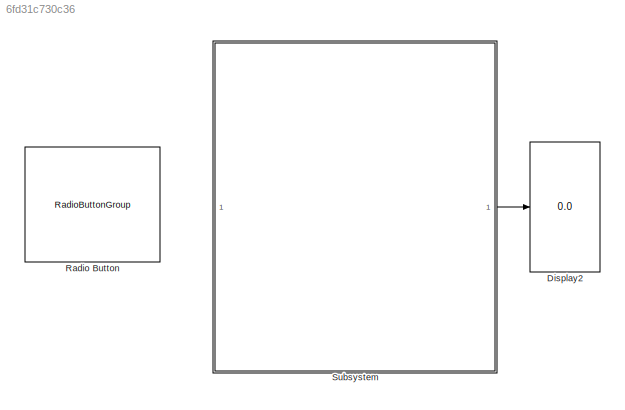
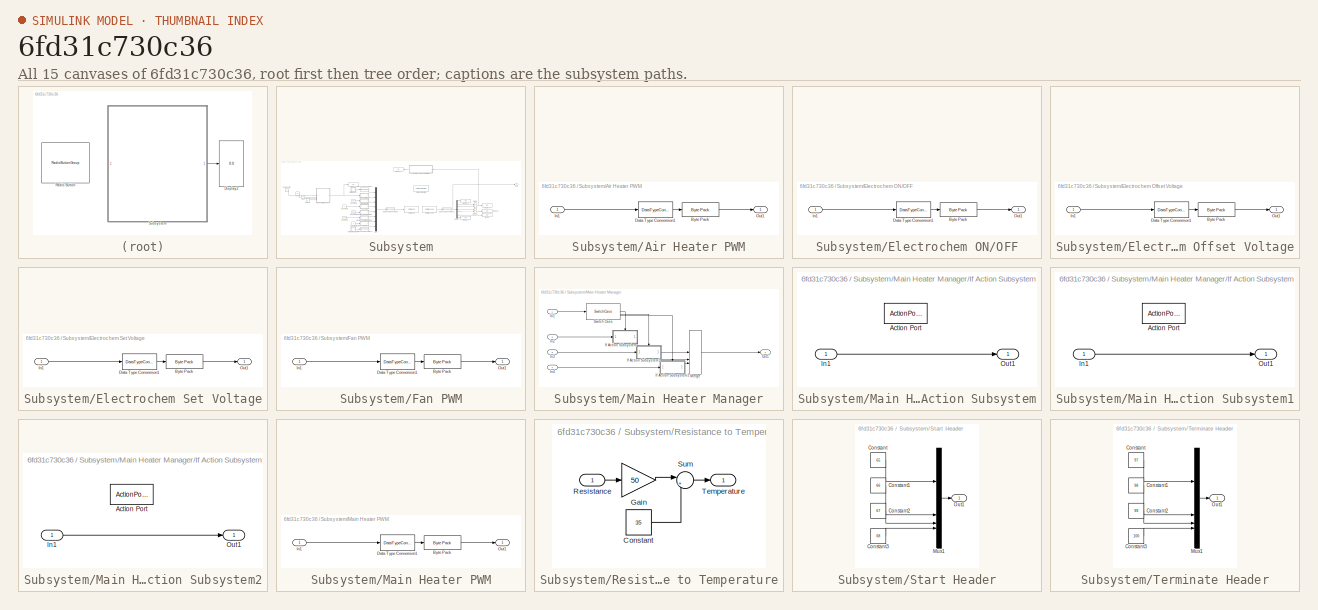
[diagram: thumbnail index - all 15 canvases of the model, root first then tree order]
MODEL slx_6fd31c730c36
KIND model
CONFIG AbsTol = auto
CONFIG EnableMultiTasking = off
CONFIG FixedStep = 0.1
CONFIG MaxStep = auto
CONFIG MinStep = auto
CONFIG RelTol = 1e-3
CONFIG SampleTimeConstraint = Unconstrained
CONFIG SolverName = FixedStepDiscrete
CONFIG StartTime = 0.0
CONFIG StopTime = inf
BLOCK [Display] Display2
  Decimation = 5
BLOCK [RadioButtonGroup] Radio Button
  ButtonGroupName = Temperature Set
  SelectedLabel = 65 C
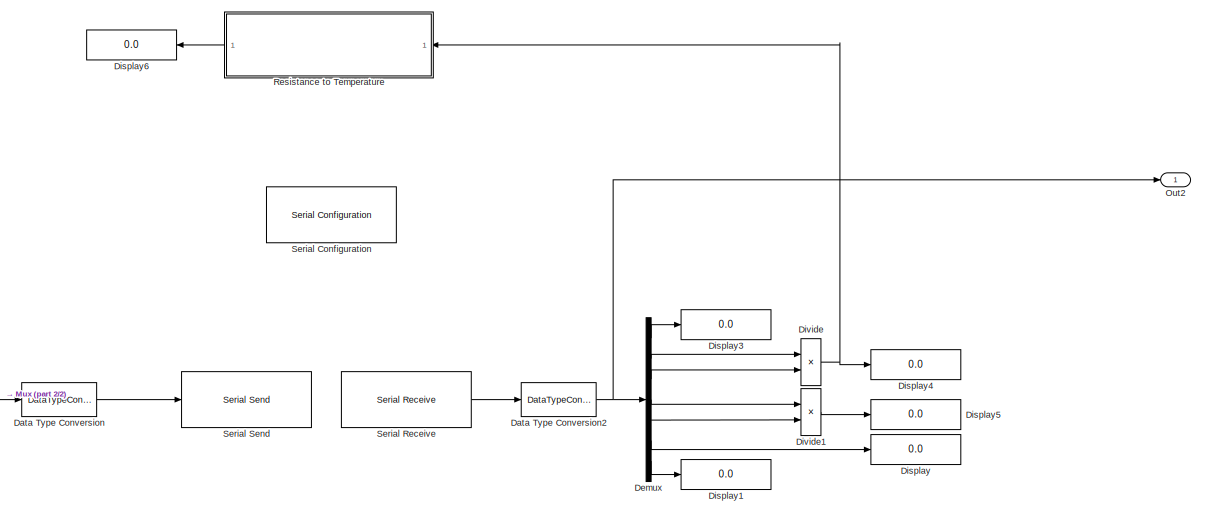
[diagram: Subsystem - part 1/2, right side, full height]
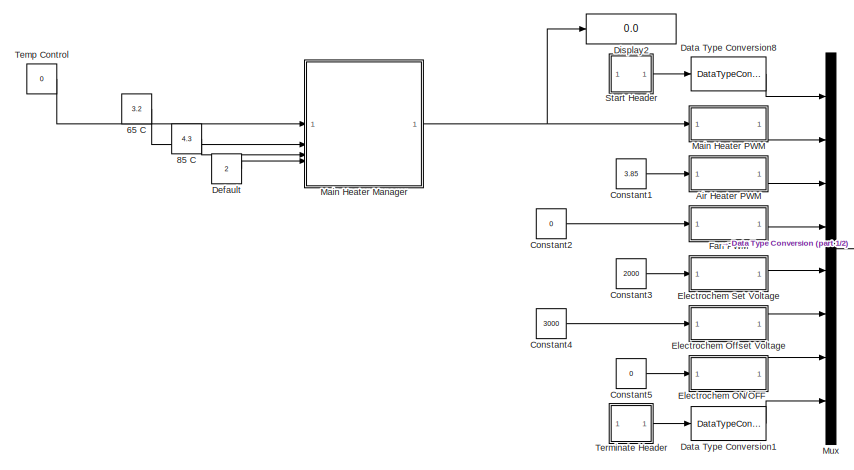
[diagram: Subsystem - part 2/2, middle left region]
BLOCK [SubSystem] Subsystem
BLOCK [Constant] Subsystem/65 C
  Value = 3.2
BLOCK [Constant] Subsystem/85 C
  Value = 4.3
BLOCK [SubSystem] Subsystem/Air Heater PWM
BLOCK [Reference] Subsystem/Air Heater PWM/Byte Pack  REF=etargetslib/Byte Pack
  LibrarySourceBlock = embeddedtargetslib/Host Communication/Byte Pack
  SourceBlock = etargetslib/Byte Pack
  SourceType = Byte pack
BLOCK [DataTypeConversion] Subsystem/Air Heater PWM/Data Type Conversion1
  OutDataTypeStr = single
  RndMeth = Floor
  SaturateOnIntegerOverflow = off
BLOCK [Inport] Subsystem/Air Heater PWM/In1
BLOCK [Outport] Subsystem/Air Heater PWM/Out1
BLOCK [Constant] Subsystem/Constant1
  Value = 3.85
BLOCK [Constant] Subsystem/Constant2
  Value = 0
BLOCK [Constant] Subsystem/Constant3
  Value = 2000
BLOCK [Constant] Subsystem/Constant4
  Value = 3000
BLOCK [Constant] Subsystem/Constant5
  Value = 0
BLOCK [DataTypeConversion] Subsystem/Data Type Conversion
  OutDataTypeStr = uint8
  RndMeth = Floor
  SaturateOnIntegerOverflow = off
BLOCK [DataTypeConversion] Subsystem/Data Type Conversion1
  OutDataTypeStr = uint8
  RndMeth = Floor
  SaturateOnIntegerOverflow = off
BLOCK [DataTypeConversion] Subsystem/Data Type Conversion2
  OutDataTypeStr = double
  RndMeth = Floor
  SaturateOnIntegerOverflow = off
BLOCK [DataTypeConversion] Subsystem/Data Type Conversion8
  OutDataTypeStr = uint8
  RndMeth = Floor
  SaturateOnIntegerOverflow = off
BLOCK [Constant] Subsystem/Default
  Value = 2
BLOCK [Demux] Subsystem/Demux
  Outputs = 7
BLOCK [Display] Subsystem/Display
  Decimation = 1
BLOCK [Display] Subsystem/Display1
  Decimation = 5
BLOCK [Display] Subsystem/Display2
  Decimation = 1
BLOCK [Display] Subsystem/Display3
  Decimation = 5
BLOCK [Display] Subsystem/Display4
  Decimation = 1
BLOCK [Display] Subsystem/Display5
  Decimation = 1
BLOCK [Display] Subsystem/Display6
  Decimation = 1
  NameLocation = top
BLOCK [Product] Subsystem/Divide
  Inputs = */
BLOCK [Product] Subsystem/Divide1
  Inputs = */
BLOCK [SubSystem] Subsystem/Electrochem ON//OFF
BLOCK [Reference] Subsystem/Electrochem ON//OFF/Byte Pack  REF=etargetslib/Byte Pack
  LibrarySourceBlock = embeddedtargetslib/Host Communication/Byte Pack
  SourceBlock = etargetslib/Byte Pack
  SourceType = Byte pack
BLOCK [DataTypeConversion] Subsystem/Electrochem ON//OFF/Data Type Conversion1
  OutDataTypeStr = single
  RndMeth = Floor
  SaturateOnIntegerOverflow = off
BLOCK [Inport] Subsystem/Electrochem ON//OFF/In1
BLOCK [Outport] Subsystem/Electrochem ON//OFF/Out1
BLOCK [SubSystem] Subsystem/Electrochem Offset Voltage
BLOCK [Reference] Subsystem/Electrochem Offset Voltage/Byte Pack  REF=etargetslib/Byte Pack
  LibrarySourceBlock = embeddedtargetslib/Host Communication/Byte Pack
  SourceBlock = etargetslib/Byte Pack
  SourceType = Byte pack
BLOCK [DataTypeConversion] Subsystem/Electrochem Offset Voltage/Data Type Conversion1
  OutDataTypeStr = single
  RndMeth = Floor
  SaturateOnIntegerOverflow = off
BLOCK [Inport] Subsystem/Electrochem Offset Voltage/In1
BLOCK [Outport] Subsystem/Electrochem Offset Voltage/Out1
BLOCK [SubSystem] Subsystem/Electrochem Set Voltage
BLOCK [Reference] Subsystem/Electrochem Set Voltage/Byte Pack  REF=etargetslib/Byte Pack
  LibrarySourceBlock = embeddedtargetslib/Host Communication/Byte Pack
  SourceBlock = etargetslib/Byte Pack
  SourceType = Byte pack
BLOCK [DataTypeConversion] Subsystem/Electrochem Set Voltage/Data Type Conversion1
  OutDataTypeStr = single
  RndMeth = Floor
  SaturateOnIntegerOverflow = off
BLOCK [Inport] Subsystem/Electrochem Set Voltage/In1
BLOCK [Outport] Subsystem/Electrochem Set Voltage/Out1
BLOCK [SubSystem] Subsystem/Fan PWM
BLOCK [Reference] Subsystem/Fan PWM/Byte Pack  REF=etargetslib/Byte Pack
  LibrarySourceBlock = embeddedtargetslib/Host Communication/Byte Pack
  SourceBlock = etargetslib/Byte Pack
  SourceType = Byte pack
BLOCK [DataTypeConversion] Subsystem/Fan PWM/Data Type Conversion1
  OutDataTypeStr = single
  RndMeth = Floor
  SaturateOnIntegerOverflow = off
BLOCK [Inport] Subsystem/Fan PWM/In1
BLOCK [Outport] Subsystem/Fan PWM/Out1
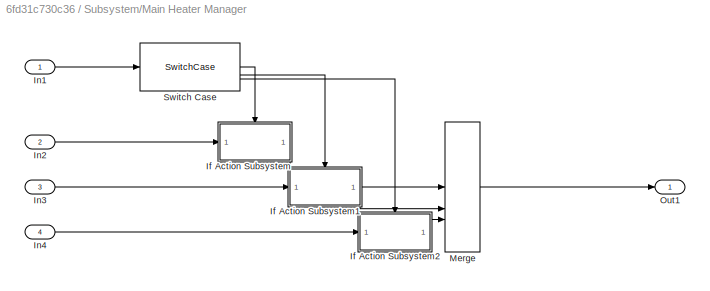
BLOCK [SubSystem] Subsystem/Main Heater Manager
BLOCK [SubSystem] Subsystem/Main Heater Manager/If Action Subsystem
  TreatAsAtomicUnit = on
BLOCK [ActionPort] Subsystem/Main Heater Manager/If Action Subsystem/Action Port
  ActionPortLabel = case [ 0 ]:
BLOCK [Inport] Subsystem/Main Heater Manager/If Action Subsystem/In1
BLOCK [Outport] Subsystem/Main Heater Manager/If Action Subsystem/Out1
BLOCK [SubSystem] Subsystem/Main Heater Manager/If Action Subsystem1
  TreatAsAtomicUnit = on
BLOCK [ActionPort] Subsystem/Main Heater Manager/If Action Subsystem1/Action Port
  ActionPortLabel = case [ 1 ]:
BLOCK [Inport] Subsystem/Main Heater Manager/If Action Subsystem1/In1
BLOCK [Outport] Subsystem/Main Heater Manager/If Action Subsystem1/Out1
BLOCK [SubSystem] Subsystem/Main Heater Manager/If Action Subsystem2
  TreatAsAtomicUnit = on
BLOCK [ActionPort] Subsystem/Main Heater Manager/If Action Subsystem2/Action Port
  ActionPortLabel = default:
BLOCK [Inport] Subsystem/Main Heater Manager/If Action Subsystem2/In1
BLOCK [Outport] Subsystem/Main Heater Manager/If Action Subsystem2/Out1
BLOCK [Inport] Subsystem/Main Heater Manager/In1
BLOCK [Inport] Subsystem/Main Heater Manager/In2
  Port = 2
BLOCK [Inport] Subsystem/Main Heater Manager/In3
  Port = 3
BLOCK [Inport] Subsystem/Main Heater Manager/In4
  Port = 4
BLOCK [Merge] Subsystem/Main Heater Manager/Merge
  InitialOutput = [0]
  Inputs = 3
BLOCK [Outport] Subsystem/Main Heater Manager/Out1
BLOCK [SwitchCase] Subsystem/Main Heater Manager/Switch Case
  CaseConditions = {0, 1}
BLOCK [SubSystem] Subsystem/Main Heater PWM
BLOCK [Reference] Subsystem/Main Heater PWM/Byte Pack  REF=etargetslib/Byte Pack
  LibrarySourceBlock = embeddedtargetslib/Host Communication/Byte Pack
  SourceBlock = etargetslib/Byte Pack
  SourceType = Byte pack
BLOCK [DataTypeConversion] Subsystem/Main Heater PWM/Data Type Conversion1
  OutDataTypeStr = single
  RndMeth = Floor
  SaturateOnIntegerOverflow = off
BLOCK [Inport] Subsystem/Main Heater PWM/In1
BLOCK [Outport] Subsystem/Main Heater PWM/Out1
BLOCK [Mux] Subsystem/Mux
  DisplayOption = bar
  Inputs = 8
BLOCK [Outport] Subsystem/Out2
BLOCK [SubSystem] Subsystem/Resistance to Temperature
  NameLocation = top
BLOCK [Constant] Subsystem/Resistance to Temperature/Constant
  Value = 35
BLOCK [Gain] Subsystem/Resistance to Temperature/Gain
  Gain = 50
BLOCK [Inport] Subsystem/Resistance to Temperature/Resistance
  NameLocation = top
BLOCK [Sum] Subsystem/Resistance to Temperature/Sum
  Inputs = |++
BLOCK [Outport] Subsystem/Resistance to Temperature/Temperature
  NameLocation = top
BLOCK [Reference] Subsystem/Serial Configuration  REF=instrumentseriallib/Serial Configuration
  LibrarySourceBlock = instrumentlib/Serial Configuration
  Priority = -200000
  SourceBlock = instrumentseriallib/Serial Configuration
  SourceType = system.SerialConfiguration
BLOCK [Reference] Subsystem/Serial Receive  REF=instrumentseriallib/Serial Receive
  LibrarySourceBlock = instrumentlib/Serial Receive
  Priority = 1
  SourceBlock = instrumentseriallib/Serial Receive
  SourceType = system.SerialReceive
BLOCK [Reference] Subsystem/Serial Send  REF=instrumentseriallib/Serial Send
  LibrarySourceBlock = instrumentlib/Serial Send
  Priority = 1
  SourceBlock = instrumentseriallib/Serial Send
  SourceType = system.SerialSend
BLOCK [SubSystem] Subsystem/Start Header
BLOCK [Constant] Subsystem/Start Header/Constant
  Value = 65
BLOCK [Constant] Subsystem/Start Header/Constant1
  Value = 66
BLOCK [Constant] Subsystem/Start Header/Constant2
  Value = 67
BLOCK [Constant] Subsystem/Start Header/Constant3
  Value = 68
BLOCK [Mux] Subsystem/Start Header/Mux1
  DisplayOption = bar
BLOCK [Outport] Subsystem/Start Header/Out1
BLOCK [Constant] Subsystem/Temp Control
  Value = 0
BLOCK [SubSystem] Subsystem/Terminate Header
BLOCK [Constant] Subsystem/Terminate Header/Constant
  Value = 97
BLOCK [Constant] Subsystem/Terminate Header/Constant1
  Value = 98
BLOCK [Constant] Subsystem/Terminate Header/Constant2
  Value = 99
BLOCK [Constant] Subsystem/Terminate Header/Constant3
  Value = 100
BLOCK [Mux] Subsystem/Terminate Header/Mux1
  DisplayOption = bar
BLOCK [Outport] Subsystem/Terminate Header/Out1
LINE Subsystem/65 C:1 -> Subsystem/Main Heater Manager:2
LINE Subsystem/85 C:1 -> Subsystem/Main Heater Manager:3
LINE Subsystem/Air Heater PWM/Byte Pack:1 -> Subsystem/Air Heater PWM/Out1:1
LINE Subsystem/Air Heater PWM/Data Type Conversion1:1 -> Subsystem/Air Heater PWM/Byte Pack:1
LINE Subsystem/Air Heater PWM/In1:1 -> Subsystem/Air Heater PWM/Data Type Conversion1:1
LINE Subsystem/Air Heater PWM:1 -> Subsystem/Mux:3
LINE Subsystem/Constant1:1 -> Subsystem/Air Heater PWM:1
LINE Subsystem/Constant2:1 -> Subsystem/Fan PWM:1
LINE Subsystem/Constant3:1 -> Subsystem/Electrochem Set Voltage:1
LINE Subsystem/Constant4:1 -> Subsystem/Electrochem Offset Voltage:1
LINE Subsystem/Constant5:1 -> Subsystem/Electrochem ON//OFF:1
LINE Subsystem/Data Type Conversion1:1 -> Subsystem/Mux:8
NET Subsystem/Data Type Conversion2:1 -> Subsystem/Demux:1, Subsystem/Out2:1
LINE Subsystem/Data Type Conversion8:1 -> Subsystem/Mux:1
LINE Subsystem/Data Type Conversion:1 -> Subsystem/Serial Send:1
LINE Subsystem/Default:1 -> Subsystem/Main Heater Manager:4
LINE Subsystem/Demux:1 -> Subsystem/Display3:1
LINE Subsystem/Demux:2 -> Subsystem/Divide:1
LINE Subsystem/Demux:3 -> Subsystem/Divide:2
LINE Subsystem/Demux:4 -> Subsystem/Divide1:1
LINE Subsystem/Demux:5 -> Subsystem/Divide1:2
LINE Subsystem/Demux:6 -> Subsystem/Display:1
LINE Subsystem/Demux:7 -> Subsystem/Display1:1
LINE Subsystem/Divide1:1 -> Subsystem/Display5:1
NET Subsystem/Divide:1 -> Subsystem/Display4:1, Subsystem/Resistance to Temperature:1
LINE Subsystem/Electrochem ON//OFF/Byte Pack:1 -> Subsystem/Electrochem ON//OFF/Out1:1
LINE Subsystem/Electrochem ON//OFF/Data Type Conversion1:1 -> Subsystem/Electrochem ON//OFF/Byte Pack:1
LINE Subsystem/Electrochem ON//OFF/In1:1 -> Subsystem/Electrochem ON//OFF/Data Type Conversion1:1
LINE Subsystem/Electrochem ON//OFF:1 -> Subsystem/Mux:7
LINE Subsystem/Electrochem Offset Voltage/Byte Pack:1 -> Subsystem/Electrochem Offset Voltage/Out1:1
LINE Subsystem/Electrochem Offset Voltage/Data Type Conversion1:1 -> Subsystem/Electrochem Offset Voltage/Byte Pack:1
LINE Subsystem/Electrochem Offset Voltage/In1:1 -> Subsystem/Electrochem Offset Voltage/Data Type Conversion1:1
LINE Subsystem/Electrochem Offset Voltage:1 -> Subsystem/Mux:6
LINE Subsystem/Electrochem Set Voltage/Byte Pack:1 -> Subsystem/Electrochem Set Voltage/Out1:1
LINE Subsystem/Electrochem Set Voltage/Data Type Conversion1:1 -> Subsystem/Electrochem Set Voltage/Byte Pack:1
LINE Subsystem/Electrochem Set Voltage/In1:1 -> Subsystem/Electrochem Set Voltage/Data Type Conversion1:1
LINE Subsystem/Electrochem Set Voltage:1 -> Subsystem/Mux:5
LINE Subsystem/Fan PWM/Byte Pack:1 -> Subsystem/Fan PWM/Out1:1
LINE Subsystem/Fan PWM/Data Type Conversion1:1 -> Subsystem/Fan PWM/Byte Pack:1
LINE Subsystem/Fan PWM/In1:1 -> Subsystem/Fan PWM/Data Type Conversion1:1
LINE Subsystem/Fan PWM:1 -> Subsystem/Mux:4
LINE Subsystem/Main Heater Manager/If Action Subsystem/In1:1 -> Subsystem/Main Heater Manager/If Action Subsystem/Out1:1
LINE Subsystem/Main Heater Manager/If Action Subsystem1/In1:1 -> Subsystem/Main Heater Manager/If Action Subsystem1/Out1:1
LINE Subsystem/Main Heater Manager/If Action Subsystem1:1 -> Subsystem/Main Heater Manager/Merge:2
LINE Subsystem/Main Heater Manager/If Action Subsystem2/In1:1 -> Subsystem/Main Heater Manager/If Action Subsystem2/Out1:1
LINE Subsystem/Main Heater Manager/If Action Subsystem2:1 -> Subsystem/Main Heater Manager/Merge:3
LINE Subsystem/Main Heater Manager/If Action Subsystem:1 -> Subsystem/Main Heater Manager/Merge:1
LINE Subsystem/Main Heater Manager/In1:1 -> Subsystem/Main Heater Manager/Switch Case:1
LINE Subsystem/Main Heater Manager/In2:1 -> Subsystem/Main Heater Manager/If Action Subsystem:1
LINE Subsystem/Main Heater Manager/In3:1 -> Subsystem/Main Heater Manager/If Action Subsystem1:1
LINE Subsystem/Main Heater Manager/In4:1 -> Subsystem/Main Heater Manager/If Action Subsystem2:1
LINE Subsystem/Main Heater Manager/Merge:1 -> Subsystem/Main Heater Manager/Out1:1
LINE Subsystem/Main Heater Manager/Switch Case:1 -> Subsystem/Main Heater Manager/If Action Subsystem:ifaction
LINE Subsystem/Main Heater Manager/Switch Case:2 -> Subsystem/Main Heater Manager/If Action Subsystem1:ifaction
LINE Subsystem/Main Heater Manager/Switch Case:3 -> Subsystem/Main Heater Manager/If Action Subsystem2:ifaction
NET Subsystem/Main Heater Manager:1 -> Subsystem/Display2:1, Subsystem/Main Heater PWM:1
LINE Subsystem/Main Heater PWM/Byte Pack:1 -> Subsystem/Main Heater PWM/Out1:1
LINE Subsystem/Main Heater PWM/Data Type Conversion1:1 -> Subsystem/Main Heater PWM/Byte Pack:1
LINE Subsystem/Main Heater PWM/In1:1 -> Subsystem/Main Heater PWM/Data Type Conversion1:1
LINE Subsystem/Main Heater PWM:1 -> Subsystem/Mux:2
LINE Subsystem/Mux:1 -> Subsystem/Data Type Conversion:1
LINE Subsystem/Resistance to Temperature/Constant:1 -> Subsystem/Resistance to Temperature/Sum:2
LINE Subsystem/Resistance to Temperature/Gain:1 -> Subsystem/Resistance to Temperature/Sum:1
LINE Subsystem/Resistance to Temperature/Resistance:1 -> Subsystem/Resistance to Temperature/Gain:1
LINE Subsystem/Resistance to Temperature/Sum:1 -> Subsystem/Resistance to Temperature/Temperature:1
LINE Subsystem/Resistance to Temperature:1 -> Subsystem/Display6:1
LINE Subsystem/Serial Receive:1 -> Subsystem/Data Type Conversion2:1
LINE Subsystem/Start Header/Constant1:1 -> Subsystem/Start Header/Mux1:2
LINE Subsystem/Start Header/Constant2:1 -> Subsystem/Start Header/Mux1:3
LINE Subsystem/Start Header/Constant3:1 -> Subsystem/Start Header/Mux1:4
LINE Subsystem/Start Header/Constant:1 -> Subsystem/Start Header/Mux1:1
LINE Subsystem/Start Header/Mux1:1 -> Subsystem/Start Header/Out1:1
LINE Subsystem/Start Header:1 -> Subsystem/Data Type Conversion8:1
LINE Subsystem/Temp Control:1 -> Subsystem/Main Heater Manager:1
LINE Subsystem/Terminate Header/Constant1:1 -> Subsystem/Terminate Header/Mux1:2
LINE Subsystem/Terminate Header/Constant2:1 -> Subsystem/Terminate Header/Mux1:3
LINE Subsystem/Terminate Header/Constant3:1 -> Subsystem/Terminate Header/Mux1:4
LINE Subsystem/Terminate Header/Constant:1 -> Subsystem/Terminate Header/Mux1:1
LINE Subsystem/Terminate Header/Mux1:1 -> Subsystem/Terminate Header/Out1:1
LINE Subsystem/Terminate Header:1 -> Subsystem/Data Type Conversion1:1
LINE Subsystem:1 -> Display2:1
note: NET lines group one-source signal fan-out (src -> all destinations, sorted); 1:1 wires keep LINE
